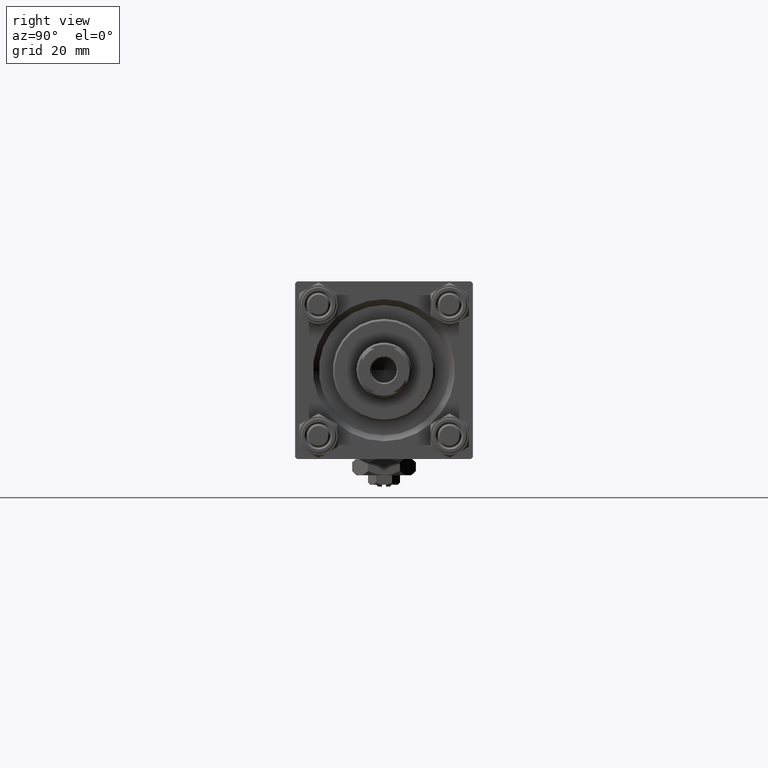
[diagram: clean part render]
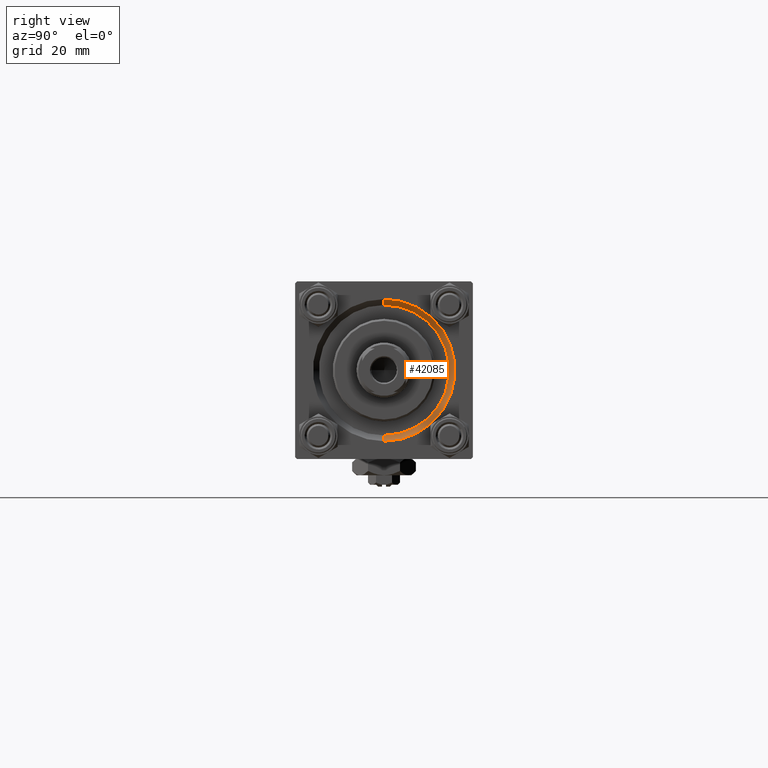
[diagram: same view with one face highlighted and labeled with its STEP entity id]
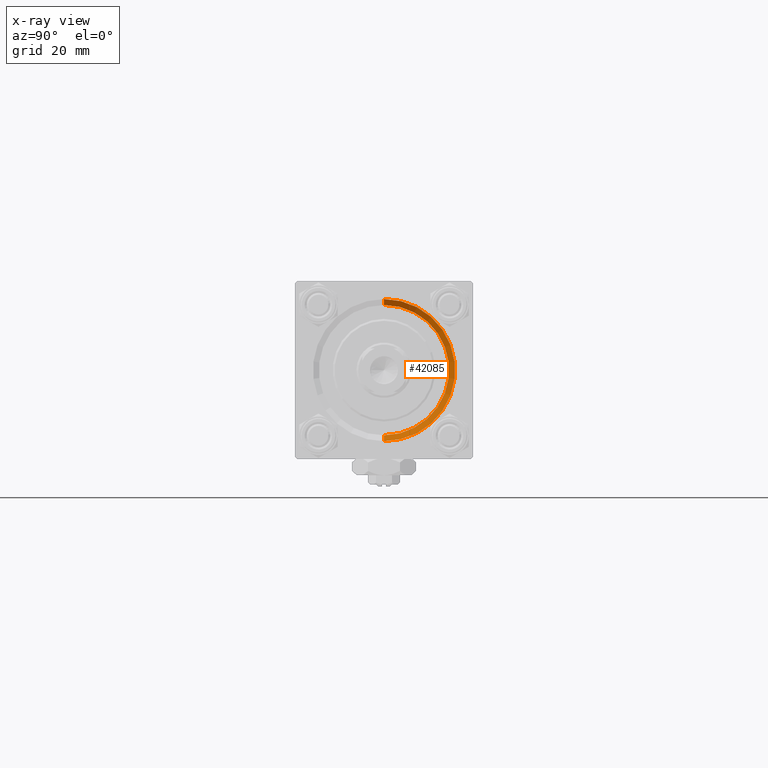
[diagram: x-ray of the same camera — body ghosted, the highlighted face saturated]
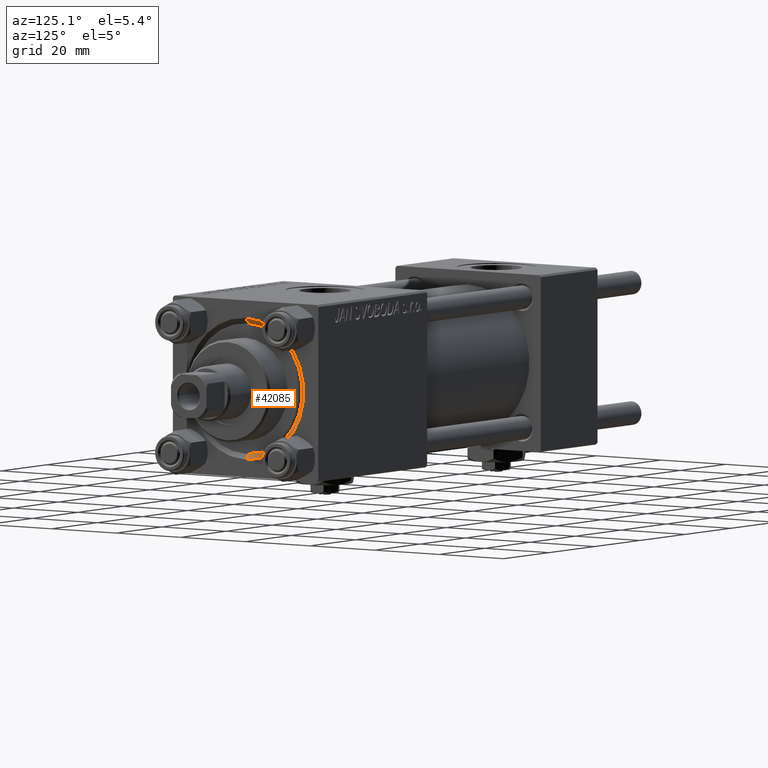
[diagram: same view with one face highlighted and labeled with its STEP entity id]
A machine part, right view. The second image highlights one B-rep face of the part: STEP entity #42085.
The next image is the same camera in x-ray: the body ghosted, the highlighted face saturated — about 0% of this face is hidden behind the body in this view.
A second angle (auxiliary view) of the same face is appended — the face is thin or edge-on in the first view.
In plain terms, the highlighted conical surface has half-angle 45 deg.
Its self-contained STEP definition (entity closure, byte-faithful):
#49 = DIRECTION ( 'NONE',  ( 0.000000000000000000, 0.000000000000000000, 1.000000000000000000 ) ) ;
#1884 = DIRECTION ( 'NONE',  ( 0.7071067811865474617, 0.000000000000000000, -0.7071067811865474617 ) ) ;
#3525 = VECTOR ( 'NONE', #9063, 1000.000000000000114 ) ;
#5098 = EDGE_LOOP ( 'NONE', ( #37137, #8171, #28287, #43540 ) ) ;
#5317 = AXIS2_PLACEMENT_3D ( 'NONE', #23303, #14883, #38528 ) ;
#6290 = EDGE_CURVE ( 'NONE', #7389, #46437, #25425, .T. ) ;
#7389 = VERTEX_POINT ( 'NONE', #41890 ) ;
#8171 = ORIENTED_EDGE ( 'NONE', *, *, #6290, .F. ) ;
#8863 = FACE_OUTER_BOUND ( 'NONE', #5098, .T. ) ;
#9063 = DIRECTION ( 'NONE',  ( 0.7071067811865474617, 8.659560562354932858E-17, 0.7071067811865474617 ) ) ;
#11519 = CARTESIAN_POINT ( 'NONE',  ( 123.0000000000000142, 0.000000000000000000, -18.00000000000000355 ) ) ;
#14883 = DIRECTION ( 'NONE',  ( 1.000000000000000000, 0.000000000000000000, 0.000000000000000000 ) ) ;
#15083 = AXIS2_PLACEMENT_3D ( 'NONE', #48227, #24111, #24883 ) ;
#20505 = CARTESIAN_POINT ( 'NONE',  ( 123.0000000000000142, 0.000000000000000000, 0.000000000000000000 ) ) ;
#23303 = CARTESIAN_POINT ( 'NONE',  ( 121.5000000000000142, 0.000000000000000000, 0.000000000000000000 ) ) ;
#24111 = DIRECTION ( 'NONE',  ( 1.000000000000000000, 0.000000000000000000, 0.000000000000000000 ) ) ;
#24309 = CONICAL_SURFACE ( 'NONE', #15083, 16.50000000000000000, 0.7853981633974482790 ) ;
#24883 = DIRECTION ( 'NONE',  ( 0.000000000000000000, 0.000000000000000000, -1.000000000000000000 ) ) ;
#25341 = LINE ( 'NONE', #41339, #3525 ) ;
#25425 = CIRCLE ( 'NONE', #5317, 16.50000000000000000 ) ;
#27933 = AXIS2_PLACEMENT_3D ( 'NONE', #20505, #36774, #49 ) ;
#28287 = ORIENTED_EDGE ( 'NONE', *, *, #30848, .T. ) ;
#29588 = CIRCLE ( 'NONE', #27933, 18.00000000000000355 ) ;
#30848 = EDGE_CURVE ( 'NONE', #7389, #41177, #33134, .T. ) ;
#33134 = LINE ( 'NONE', #49379, #38580 ) ;
#33935 = VERTEX_POINT ( 'NONE', #45533 ) ;
#34490 = EDGE_CURVE ( 'NONE', #33935, #41177, #29588, .T. ) ;
#36774 = DIRECTION ( 'NONE',  ( -1.000000000000000000, 0.000000000000000000, -0.000000000000000000 ) ) ;
#37137 = ORIENTED_EDGE ( 'NONE', *, *, #45739, .F. ) ;
#38528 = DIRECTION ( 'NONE',  ( 0.000000000000000000, 0.000000000000000000, 1.000000000000000000 ) ) ;
#38580 = VECTOR ( 'NONE', #1884, 1000.000000000000114 ) ;
#39367 = CARTESIAN_POINT ( 'NONE',  ( 121.5000000000000142, 2.020667218593133100E-15, 16.50000000000000000 ) ) ;
#41177 = VERTEX_POINT ( 'NONE', #11519 ) ;
#41339 = CARTESIAN_POINT ( 'NONE',  ( 121.5000000000000142, 2.020667218593133100E-15, 16.50000000000000000 ) ) ;
#41890 = CARTESIAN_POINT ( 'NONE',  ( 121.5000000000000142, 0.000000000000000000, -16.50000000000000000 ) ) ;
#42085 = ADVANCED_FACE ( 'NONE', ( #8863 ), #24309, .F. ) ;
#43540 = ORIENTED_EDGE ( 'NONE', *, *, #34490, .F. ) ;
#45533 = CARTESIAN_POINT ( 'NONE',  ( 123.0000000000000142, 2.204364238465235822E-15, 18.00000000000000355 ) ) ;
#45739 = EDGE_CURVE ( 'NONE', #46437, #33935, #25341, .T. ) ;
#46437 = VERTEX_POINT ( 'NONE', #39367 ) ;
#48227 = CARTESIAN_POINT ( 'NONE',  ( 121.5000000000000142, 0.000000000000000000, 0.000000000000000000 ) ) ;
#49379 = CARTESIAN_POINT ( 'NONE',  ( 121.5000000000000142, 0.000000000000000000, -16.50000000000000000 ) ) ;